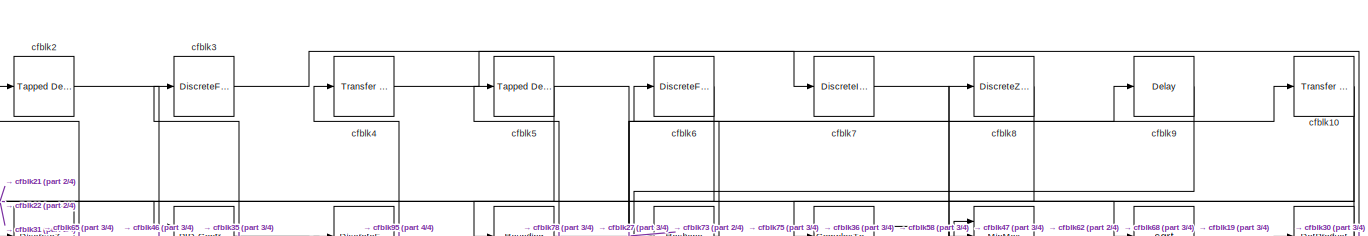
[diagram: root canvas - part 1/4, full width, top band]
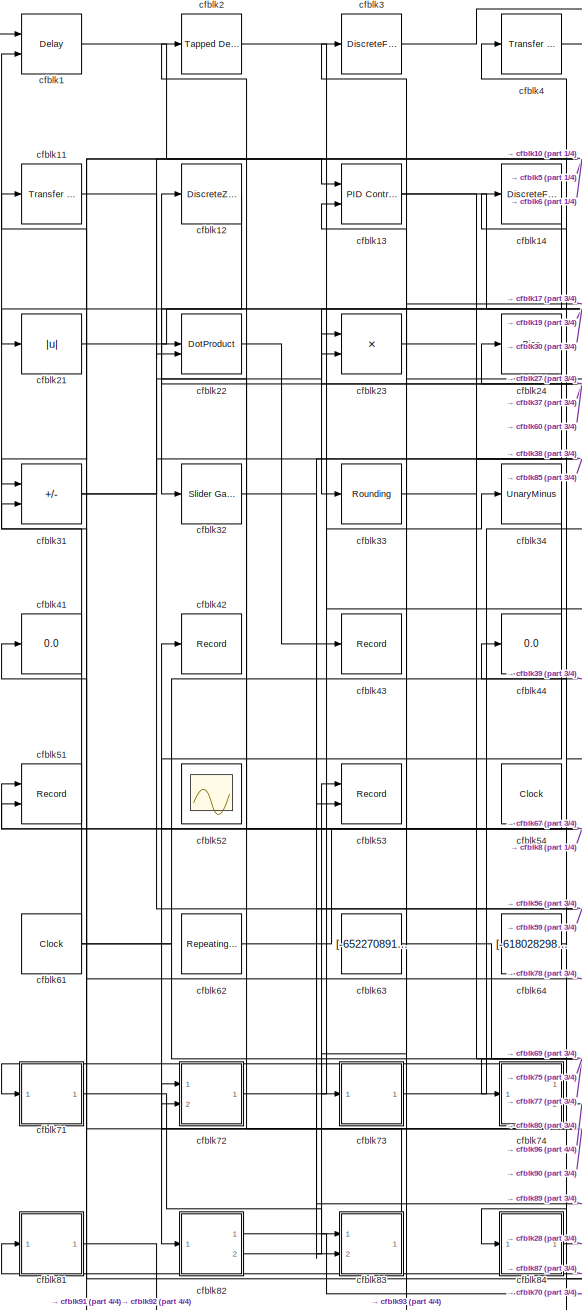
[diagram: root canvas - part 2/4, left side, full height]
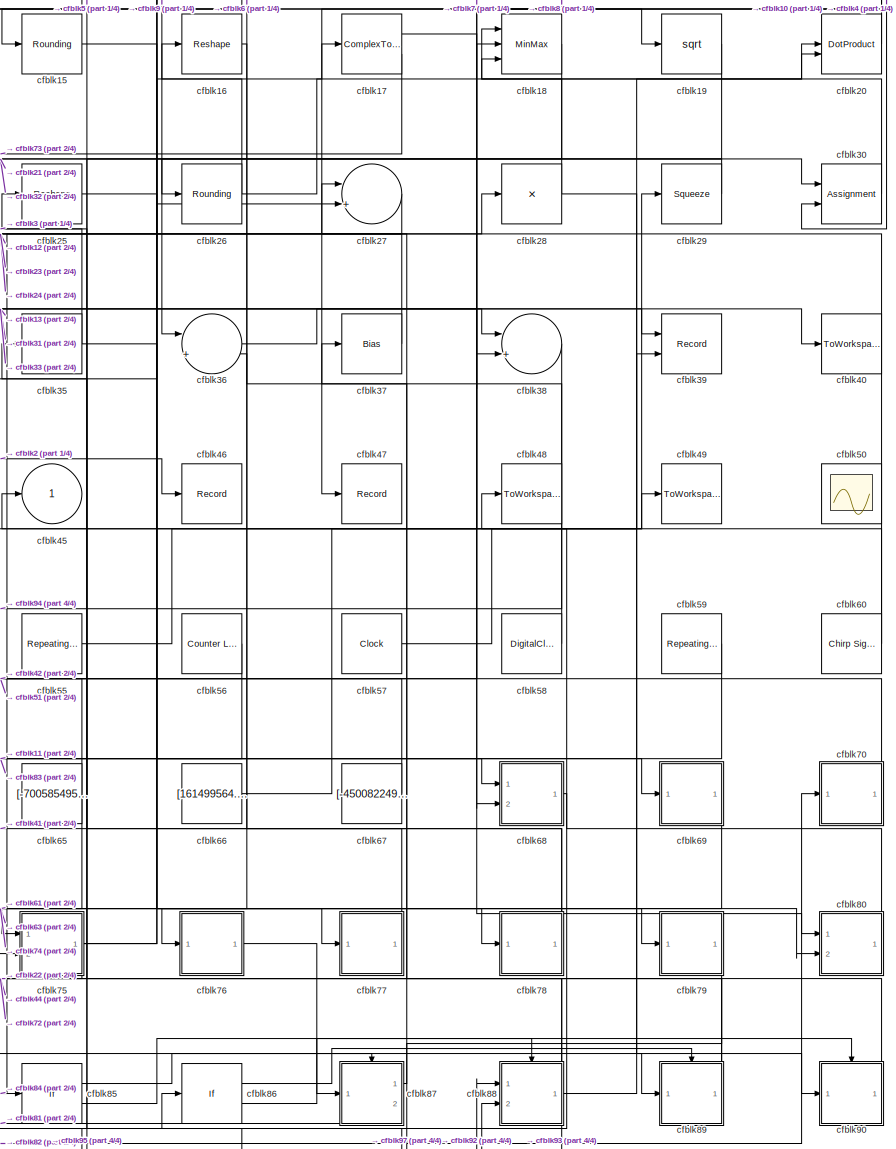
[diagram: root canvas - part 3/4, right side, full height]
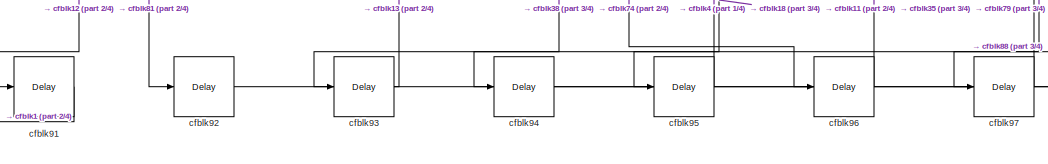
[diagram: root canvas - part 4/4, bottom center region]
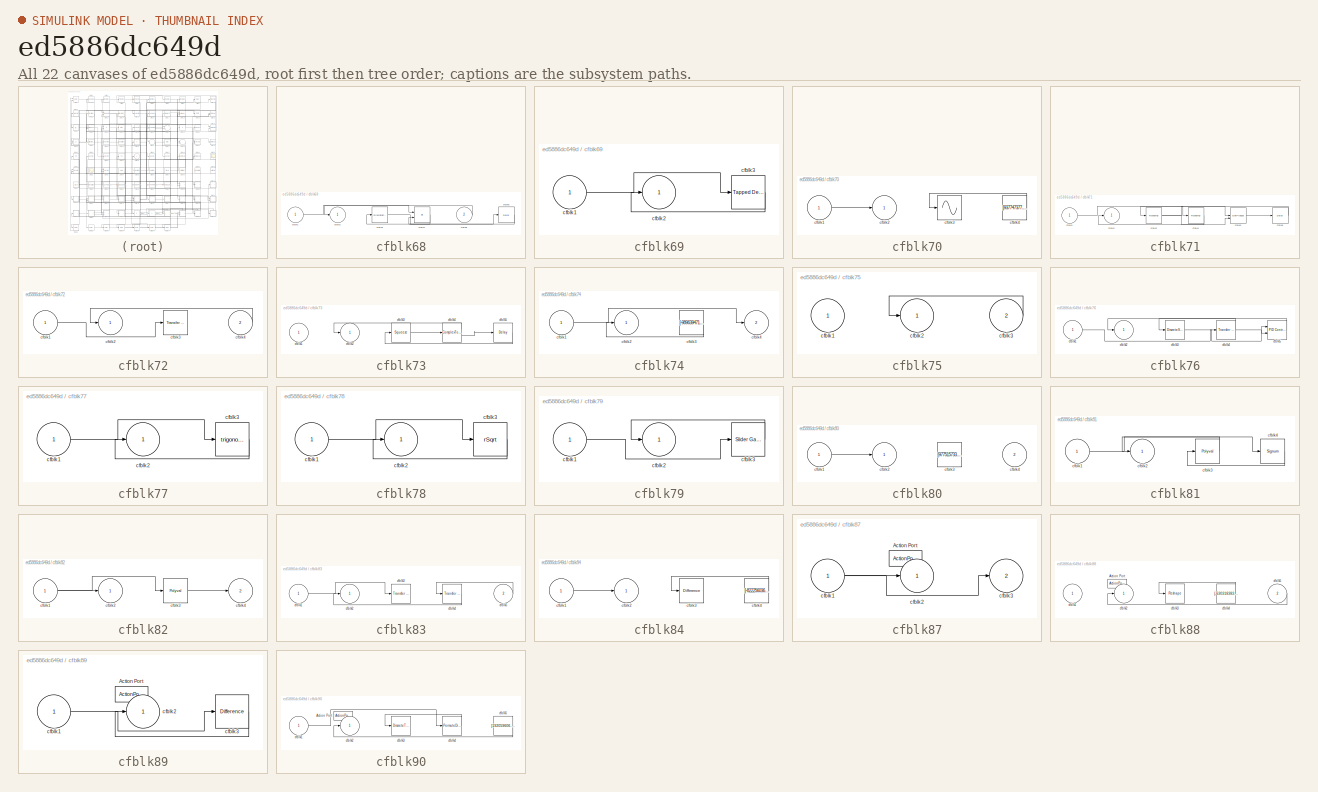
[diagram: thumbnail index - all 22 canvases of the model, root first then tree order]
MODEL slx_ed5886dc649d
KIND model
CONFIG AbsTol = auto
CONFIG EnableMultiTasking = off
CONFIG FixedStep = auto
CONFIG MaxStep = auto
CONFIG MinStep = auto
CONFIG RelTol = 1e-3
CONFIG SampleTimeConstraint = Unconstrained
CONFIG SolverName = VariableStepAuto
CONFIG StartTime = 0.0
CONFIG StopTime = 10.0
BLOCK [Delay] cfblk1
  InputPortMap = u0,e6
  Ports = [2, 1]
  SampleTime = 1
  ShowEnablePort = on
BLOCK [Reference] cfblk10  REF=simulink/Discrete/Transfer Fcn
Real Zero
  Ports = [1, 1]
  SourceBlock = simulink/Discrete/Transfer Fcn\nReal Zero
  SourceProductBaseCode = SL
  SourceType = Transfer Fcn Real Zero
BLOCK [Reference] cfblk11  REF=simulink/Discrete/Transfer Fcn
Real Zero
  Ports = [1, 1]
  SourceBlock = simulink/Discrete/Transfer Fcn\nReal Zero
  SourceProductBaseCode = SL
  SourceType = Transfer Fcn Real Zero
BLOCK [DiscreteZeroPole] cfblk12
  Gain = 1
  Poles = [0 0.5]
BLOCK [Reference] cfblk13  REF=slpidlib/PID Controller (2DOF)
  Ports = [2, 1]
  SourceBlock = slpidlib/PID Controller (2DOF)
  SourceProductBaseCode = SL
  SourceType = PID 2dof
BLOCK [DiscreteFir] cfblk14
  InputPortMap = u0
  OutputPortMap = o0
  Ports = [1, 1]
  SampleTime = 1
BLOCK [Rounding] cfblk15
BLOCK [Reshape] cfblk16
  Ports = [1, 1]
BLOCK [ComplexToMagnitudeAngle] cfblk17
  Ports = [1, 2]
BLOCK [MinMax] cfblk18
  Inputs = 3
  Ports = [3, 1]
BLOCK [Sqrt] cfblk19
BLOCK [Reference] cfblk2  REF=simulink/Discrete/Tapped Delay
  Ports = [1, 1]
  SourceBlock = simulink/Discrete/Tapped Delay
  SourceProductBaseCode = SL
  SourceType = Tapped Delay Line
BLOCK [DotProduct] cfblk20
  OutDataTypeStr = Inherit: Inherit via internal rule
BLOCK [Abs] cfblk21
  SaturateOnIntegerOverflow = off
BLOCK [DotProduct] cfblk22
  OutDataTypeStr = Inherit: Inherit via internal rule
BLOCK [Product] cfblk23
  Ports = [2, 1]
BLOCK [Bias] cfblk24
  Bias = [221233123.579420]
  SaturateOnIntegerOverflow = off
BLOCK [Reshape] cfblk25
  Ports = [1, 1]
BLOCK [Rounding] cfblk26
BLOCK [Sum] cfblk27
  Inputs = |++
  Ports = [2, 1]
BLOCK [Product] cfblk28
  Inputs = *
  Ports = [1, 1]
BLOCK [Squeeze] cfblk29
BLOCK [DiscreteFir] cfblk3
  InputPortMap = u0
  OutputPortMap = o0
  Ports = [1, 1]
  SampleTime = 1
BLOCK [Assignment] cfblk30
  DiagnosticForDimensions = Warning
  IndexOptions = Index vector (dialog)
  Indices = 1
  OutputSizes = 1
  Ports = [2, 1]
BLOCK [Sum] cfblk31
  IconShape = rectangular
  Inputs = +-
  Ports = [2, 1]
BLOCK [Reference] cfblk32  REF=simulink/Math
Operations/Slider
Gain
  Ports = [1, 1]
  SourceBlock = simulink/Math\nOperations/Slider\nGain
  SourceProductBaseCode = SL
  SourceType = Slider Gain
BLOCK [Rounding] cfblk33
BLOCK [UnaryMinus] cfblk34
BLOCK [Product] cfblk35
  Inputs = *
  Ports = [1, 1]
BLOCK [Sum] cfblk36
  Inputs = |++
  Ports = [2, 1]
BLOCK [Bias] cfblk37
  Bias = [-469509742.243286]
  SaturateOnIntegerOverflow = off
BLOCK [Sum] cfblk38
  Inputs = |++
  Ports = [2, 1]
BLOCK [Record] cfblk39
  CompatibilityTag = XY
  FileSettingsInternal = {"entries":[{"content":{"excelSettings":{"content":{},"type":"Streamout.ExcelSettings"}},"type":"Streamout.FileSettingStorage","uuid":"39295518-5782-4a04-9dda-65bbf2f7290d"}],"packageUris":["http://schema.mathworks.com/mf0/streamout_blocks/R2020a"],"version":"1.0"}
  Layout = [1 1]
  Ports = [2]
  SignalsInternal = {"entries":[{"content":{"signals":[{"content":{"blockPath":["sampleModel250/cfblk39"],"channel":[],"dimensions":[1],"domain":"sampleModel250/cfblk39","lineColor":"#a2142f","plots":[1],"port":1,"sid":[""],"signalID":10132,"signalName":"cfblk33"},"type":"RecordBlkView.Signal","uuid":"9efbc733-4780-4410-b863-ce1b8cd8a036"},{"content":{"blockPath":["sampleModel250/cfblk39"],"channel":[],"dimensions":[...<+385ch>
  VisualizationBindings = {"xyplotplugin":{"info":[{"series":[{"bindingParametersList":[{"parameter":"X-Axis","signalID":10132,"signalName":"cfblk33"},{"parameter":"Y-Axis","signalID":10136,"signalName":"cfblk61"}],"seriesID":11867}],"subplotID":1}]}}
BLOCK [Reference] cfblk4  REF=simulink/Discrete/Transfer Fcn
Lead or Lag
  Ports = [1, 1]
  SourceBlock = simulink/Discrete/Transfer Fcn\nLead or Lag
  SourceProductBaseCode = SL
  SourceType = Lead or Lag Compensator
BLOCK [ToWorkspace] cfblk40
  FixptAsFi = on
  MaxDataPoints = inf
  Ports = [1]
  SampleTime = -1
  SaveFormat = Timeseries
  VariableName = mmruxmq
BLOCK [Display] cfblk41
  Decimation = 1
  Ports = [1]
BLOCK [Record] cfblk42
  FileSettingsInternal = {"entries":[{"content":{"excelSettings":{"content":{},"type":"Streamout.ExcelSettings"}},"type":"Streamout.FileSettingStorage","uuid":"cb9cef44-850f-46f8-9e62-a5d9019da7f8"}],"packageUris":["http://schema.mathworks.com/mf0/streamout_blocks/R2020a"],"version":"1.0"}
  Ports = [1]
  SignalsInternal = {"entries":[{"content":{"signals":[{"content":{"blockPath":["sampleModel250/cfblk42"],"channel":[],"dimensions":[1],"domain":"sampleModel250/cfblk42","lineColor":"#0072bd","plots":[1],"port":1,"sid":[""],"signalID":10168,"signalName":"cfblk67"},"type":"RecordBlkView.Signal","uuid":"09506a4d-d469-40bf-9df4-0557f256c8fa"}]},"type":"RecordBlkView.InputSignals","uuid":"d07d11bf-0a13-4a29-ba0c-274f99fc...<+98ch>
  VisualizationBindings = {"sparklinesplugin":{"info":[{"bindingParametersList":[],"subplotID":1}]}}
BLOCK [Record] cfblk43
  FileSettingsInternal = {"entries":[{"content":{"excelSettings":{"content":{},"type":"Streamout.ExcelSettings"}},"type":"Streamout.FileSettingStorage","uuid":"24f78354-d28b-420c-ba3f-fe416d6032e0"}],"packageUris":["http://schema.mathworks.com/mf0/streamout_blocks/R2020a"],"version":"1.0"}
  Ports = [1]
  SignalsInternal = {"entries":[{"content":{"signals":[{"content":{"blockPath":["sampleModel250/cfblk43"],"channel":[],"dimensions":[1],"domain":"sampleModel250/cfblk43","lineColor":"#139fff","plots":[1],"port":1,"sid":[""],"signalID":10140,"signalName":"cfblk22"},"type":"RecordBlkView.Signal","uuid":"c1a6c549-0a82-4f1d-8783-18ee6ca6e206"}]},"type":"RecordBlkView.InputSignals","uuid":"009778dc-f500-4119-a494-20fbbf5a...<+98ch>
  VisualizationBindings = {"sparklinesplugin":{"info":[{"bindingParametersList":[],"subplotID":1}]}}
BLOCK [Display] cfblk44
  Decimation = 1
  Ports = [1]
BLOCK [Outport] cfblk45
BLOCK [Record] cfblk46
  FileSettingsInternal = {"entries":[{"content":{"excelSettings":{"content":{},"type":"Streamout.ExcelSettings"}},"type":"Streamout.FileSettingStorage","uuid":"d34b3b38-d37b-44bf-a1ca-0d6c239076fa"}],"packageUris":["http://schema.mathworks.com/mf0/streamout_blocks/R2020a"],"version":"1.0"}
  Ports = [1]
  SignalsInternal = {"entries":[{"content":{"signals":[{"content":{"blockPath":["sampleModel250/cfblk46"],"channel":[],"dimensions":[1],"domain":"sampleModel250/cfblk46","lineColor":"#ff6929","plots":[1],"port":1,"sid":[""],"signalID":10144,"signalName":"cfblk2"},"type":"RecordBlkView.Signal","uuid":"5d42b0a2-1079-46c0-88f1-f1e7f1e913a3"}]},"type":"RecordBlkView.InputSignals","uuid":"de118d10-f6e7-4dc8-9a86-7f08f8c21...<+97ch>
  VisualizationBindings = {"sparklinesplugin":{"info":[{"bindingParametersList":[],"subplotID":1}]}}
BLOCK [Record] cfblk47
  FileSettingsInternal = {"entries":[{"content":{"excelSettings":{"content":{},"type":"Streamout.ExcelSettings"}},"type":"Streamout.FileSettingStorage","uuid":"d3a56f26-8ac3-44b7-90be-3d39ad570db3"}],"packageUris":["http://schema.mathworks.com/mf0/streamout_blocks/R2020a"],"version":"1.0"}
  Ports = [1]
  SignalsInternal = {"entries":[{"content":{"signals":[{"content":{"blockPath":["sampleModel250/cfblk47"],"channel":[],"dimensions":[1],"domain":"sampleModel250/cfblk47","lineColor":"#b746ff","plots":[1],"port":1,"sid":[""],"signalID":10148,"signalName":"cfblk10"},"type":"RecordBlkView.Signal","uuid":"91dbde0a-49a0-40fd-acb2-10672f723bb8"}]},"type":"RecordBlkView.InputSignals","uuid":"eb8da581-21b2-4b6f-8b31-33cd9e31...<+98ch>
  VisualizationBindings = {"sparklinesplugin":{"info":[{"bindingParametersList":[],"subplotID":1}]}}
BLOCK [ToWorkspace] cfblk48
  FixptAsFi = on
  MaxDataPoints = inf
  Ports = [1]
  SampleTime = -1
  SaveFormat = Timeseries
  VariableName = fczpstf
BLOCK [ToWorkspace] cfblk49
  FixptAsFi = on
  MaxDataPoints = inf
  Ports = [1]
  SampleTime = -1
  SaveFormat = Timeseries
  VariableName = zfhgqgn
BLOCK [Reference] cfblk5  REF=simulink/Discrete/Tapped Delay
  Ports = [1, 1]
  SourceBlock = simulink/Discrete/Tapped Delay
  SourceProductBaseCode = SL
  SourceType = Tapped Delay Line
BLOCK [Scope] cfblk50
  Floating = on
  NumInputPorts = 1
  Ports = []
BLOCK [Record] cfblk51
  CompatibilityTag = XY
  FileSettingsInternal = {"entries":[{"content":{"excelSettings":{"content":{},"type":"Streamout.ExcelSettings"}},"type":"Streamout.FileSettingStorage","uuid":"966ac46e-7d6c-426f-9254-bf47747501fd"}],"packageUris":["http://schema.mathworks.com/mf0/streamout_blocks/R2020a"],"version":"1.0"}
  Layout = [1 1]
  Ports = [2]
  SignalsInternal = {"entries":[{"content":{"signals":[{"content":{"blockPath":["sampleModel250/cfblk51"],"channel":[],"dimensions":[1],"domain":"sampleModel250/cfblk51","lineColor":"#a2142f","plots":[1],"port":1,"sid":[""],"signalID":10152,"signalName":"cfblk70"},"type":"RecordBlkView.Signal","uuid":"bcb4d5db-4b3e-4679-994d-15607dbef0df"},{"content":{"blockPath":["sampleModel250/cfblk51"],"channel":[],"dimensions":[...<+385ch>
  VisualizationBindings = {"xyplotplugin":{"info":[{"series":[{"bindingParametersList":[{"parameter":"X-Axis","signalID":10152,"signalName":"cfblk70"},{"parameter":"Y-Axis","signalID":10156,"signalName":"cfblk54"}],"seriesID":32821}],"subplotID":1}]}}
BLOCK [Scope] cfblk52
  Floating = on
  NumInputPorts = 1
  Ports = []
BLOCK [Record] cfblk53
  CompatibilityTag = XY
  FileSettingsInternal = {"entries":[{"content":{"excelSettings":{"content":{},"type":"Streamout.ExcelSettings"}},"type":"Streamout.FileSettingStorage","uuid":"99a0b977-80ef-4c26-b42d-8fc2480f20f4"}],"packageUris":["http://schema.mathworks.com/mf0/streamout_blocks/R2020a"],"version":"1.0"}
  Layout = [1 1]
  Ports = [2]
  SignalsInternal = {"entries":[{"content":{"signals":[{"content":{"blockPath":["sampleModel250/cfblk53"],"channel":[],"dimensions":[1],"domain":"sampleModel250/cfblk53","lineColor":"#a2142f","plots":[1],"port":1,"sid":[""],"signalID":10160,"signalName":"cfblk82:2"},"type":"RecordBlkView.Signal","uuid":"1e65bc9d-8603-4a2e-9d1d-7b919e3292a0"},{"content":{"blockPath":["sampleModel250/cfblk53"],"channel":[],"dimensions"...<+387ch>
  VisualizationBindings = {"xyplotplugin":{"info":[{"series":[{"bindingParametersList":[{"parameter":"X-Axis","signalID":10160,"signalName":"cfblk82:2"},{"parameter":"Y-Axis","signalID":10164,"signalName":"cfblk24"}],"seriesID":43266}],"subplotID":1}]}}
BLOCK [Clock] cfblk54
BLOCK [Reference] cfblk55  REF=simulink/Sources/Repeating
Sequence
Stair
  Ports = [0, 1]
  SourceBlock = simulink/Sources/Repeating\nSequence\nStair
  SourceProductBaseCode = SL
  SourceType = Repeating Sequence Stair
BLOCK [Reference] cfblk56  REF=simulink/Sources/Counter
Limited
  Ports = [0, 1]
  SourceBlock = simulink/Sources/Counter\nLimited
  SourceProductBaseCode = SL
  SourceType = Counter Limited
BLOCK [Clock] cfblk57
BLOCK [DigitalClock] cfblk58
BLOCK [Reference] cfblk59  REF=simulink/Sources/Repeating
Sequence
  Ports = [0, 1]
  SourceBlock = simulink/Sources/Repeating\nSequence
  SourceProductBaseCode = SL
  SourceType = Repeating table
BLOCK [DiscreteFir] cfblk6
  InputPortMap = u0
  OutputPortMap = o0
  Ports = [1, 1]
  SampleTime = 1
BLOCK [Reference] cfblk60  REF=simulink/Sources/Chirp Signal
  Ports = [0, 1]
  SourceBlock = simulink/Sources/Chirp Signal
  SourceProductBaseCode = SL
  SourceType = chirp
BLOCK [Clock] cfblk61
BLOCK [Reference] cfblk62  REF=simulink/Sources/Repeating
Sequence
Interpolated
  Ports = [0, 1]
  SourceBlock = simulink/Sources/Repeating\nSequence\nInterpolated
  SourceProductBaseCode = SL
  SourceType = Repeating Sequence Interpolated
BLOCK [Constant] cfblk63
  SampleTime = 1
  Value = [-652270891.321598]
BLOCK [Constant] cfblk64
  SampleTime = 1
  Value = [-618028298.937275]
BLOCK [Constant] cfblk65
  SampleTime = 1
  Value = [-700585495.887032]
BLOCK [Constant] cfblk66
  SampleTime = 1
  Value = [161499564.067935]
BLOCK [Constant] cfblk67
  SampleTime = 1
  Value = [-450082249.795794]
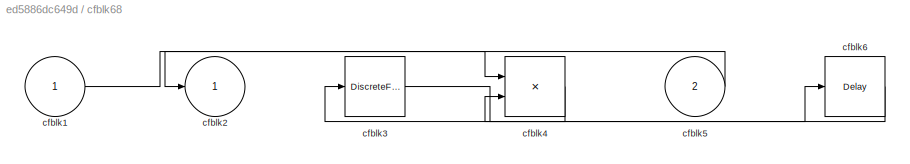
BLOCK [SubSystem] cfblk68
  Ports = [2, 1]
  RequestExecContextInheritance = off
BLOCK [Inport] cfblk68/cfblk1
BLOCK [Outport] cfblk68/cfblk2
BLOCK [DiscreteFir] cfblk68/cfblk3
  InputPortMap = u0
  OutputPortMap = o0
  Ports = [1, 1]
  SampleTime = 1
BLOCK [Product] cfblk68/cfblk4
  Inputs = **
  Ports = [2, 1]
BLOCK [Inport] cfblk68/cfblk5
  Port = 2
BLOCK [Delay] cfblk68/cfblk6
  InputPortMap = u0
  Ports = [1, 1]
  SampleTime = 1
BLOCK [SubSystem] cfblk69
  Ports = [1, 1]
  RequestExecContextInheritance = off
BLOCK [Inport] cfblk69/cfblk1
BLOCK [Outport] cfblk69/cfblk2
BLOCK [Reference] cfblk69/cfblk3  REF=simulink/Discrete/Tapped Delay
  Ports = [1, 1]
  SourceBlock = simulink/Discrete/Tapped Delay
  SourceProductBaseCode = SL
  SourceType = Tapped Delay Line
BLOCK [DiscreteIntegrator] cfblk7
  ICPrevOutput = DiscIntNeverNeededParam
  ICPrevScaledInput = DiscIntNeverNeededParam
  InitialConditionSetting = Auto
  Ports = [1, 1]
BLOCK [SubSystem] cfblk70
  Ports = [1, 1]
  RequestExecContextInheritance = off
BLOCK [Inport] cfblk70/cfblk1
BLOCK [Outport] cfblk70/cfblk2
BLOCK [Sin] cfblk70/cfblk3
  Ports = [1, 1]
  SampleTime = 0
  TimeSource = Use external signal
BLOCK [Constant] cfblk70/cfblk4
  SampleTime = 1
  Value = [937747377.482139]
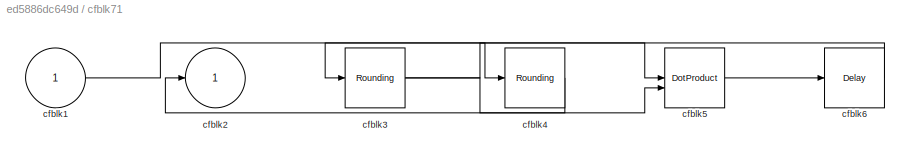
BLOCK [SubSystem] cfblk71
  Ports = [1, 1]
  RequestExecContextInheritance = off
BLOCK [Inport] cfblk71/cfblk1
BLOCK [Outport] cfblk71/cfblk2
BLOCK [Rounding] cfblk71/cfblk3
BLOCK [Rounding] cfblk71/cfblk4
BLOCK [DotProduct] cfblk71/cfblk5
  OutDataTypeStr = Inherit: Inherit via internal rule
BLOCK [Delay] cfblk71/cfblk6
  InputPortMap = u0
  Ports = [1, 1]
  SampleTime = 1
BLOCK [SubSystem] cfblk72
  Ports = [2, 1]
  RequestExecContextInheritance = off
BLOCK [Inport] cfblk72/cfblk1
BLOCK [Outport] cfblk72/cfblk2
BLOCK [Reference] cfblk72/cfblk3  REF=simulink/Discrete/Transfer Fcn
First Order
  Ports = [1, 1]
  SourceBlock = simulink/Discrete/Transfer Fcn\nFirst Order
  SourceProductBaseCode = SL
  SourceType = First Order Transfer Fcn
BLOCK [Inport] cfblk72/cfblk4
  Port = 2
BLOCK [SubSystem] cfblk73
  Ports = [1, 1]
  RequestExecContextInheritance = off
BLOCK [Inport] cfblk73/cfblk1
BLOCK [Outport] cfblk73/cfblk2
BLOCK [Squeeze] cfblk73/cfblk3
BLOCK [ComplexToRealImag] cfblk73/cfblk4
  Ports = [1, 2]
BLOCK [Delay] cfblk73/cfblk5
  InputPortMap = u0
  Ports = [1, 1]
  SampleTime = 1
BLOCK [SubSystem] cfblk74
  Ports = [1, 2]
  RequestExecContextInheritance = off
BLOCK [Inport] cfblk74/cfblk1
BLOCK [Outport] cfblk74/cfblk2
BLOCK [Constant] cfblk74/cfblk3
  SampleTime = 1
  Value = [-989639471.123459]
BLOCK [Outport] cfblk74/cfblk4
  Port = 2
BLOCK [SubSystem] cfblk75
  Ports = [2, 1]
  RequestExecContextInheritance = off
BLOCK [Inport] cfblk75/cfblk1
BLOCK [Outport] cfblk75/cfblk2
BLOCK [Inport] cfblk75/cfblk3
  Port = 2
BLOCK [SubSystem] cfblk76
  Ports = [1, 1]
  RequestExecContextInheritance = off
BLOCK [Inport] cfblk76/cfblk1
BLOCK [Outport] cfblk76/cfblk2
BLOCK [DiscreteStateSpace] cfblk76/cfblk3
BLOCK [Reference] cfblk76/cfblk4  REF=simulink/Discrete/Transfer Fcn
First Order
  Ports = [1, 1]
  SourceBlock = simulink/Discrete/Transfer Fcn\nFirst Order
  SourceProductBaseCode = SL
  SourceType = First Order Transfer Fcn
BLOCK [Reference] cfblk76/cfblk5  REF=slpidlib/PID Controller (2DOF)
  Ports = [2, 1]
  SourceBlock = slpidlib/PID Controller (2DOF)
  SourceProductBaseCode = SL
  SourceType = PID 2dof
BLOCK [SubSystem] cfblk77
  Ports = [1, 1]
  RequestExecContextInheritance = off
BLOCK [Inport] cfblk77/cfblk1
BLOCK [Outport] cfblk77/cfblk2
BLOCK [Trigonometry] cfblk77/cfblk3
  Ports = [1, 1]
BLOCK [SubSystem] cfblk78
  Ports = [1, 1]
  RequestExecContextInheritance = off
BLOCK [Inport] cfblk78/cfblk1
BLOCK [Outport] cfblk78/cfblk2
BLOCK [Sqrt] cfblk78/cfblk3
  AlgorithmType = Newton-Raphson
  Operator = rSqrt
BLOCK [SubSystem] cfblk79
  Ports = [1, 1]
  RequestExecContextInheritance = off
BLOCK [Inport] cfblk79/cfblk1
BLOCK [Outport] cfblk79/cfblk2
BLOCK [Reference] cfblk79/cfblk3  REF=simulink/Math
Operations/Slider
Gain
  Ports = [1, 1]
  SourceBlock = simulink/Math\nOperations/Slider\nGain
  SourceProductBaseCode = SL
  SourceType = Slider Gain
BLOCK [DiscreteZeroPole] cfblk8
  Gain = 1
  Poles = [0 0.5]
BLOCK [SubSystem] cfblk80
  Ports = [2, 1]
  RequestExecContextInheritance = off
BLOCK [Inport] cfblk80/cfblk1
BLOCK [Outport] cfblk80/cfblk2
BLOCK [Constant] cfblk80/cfblk3
  SampleTime = 1
  Value = [977515733.967812]
BLOCK [Inport] cfblk80/cfblk4
  Port = 2
BLOCK [SubSystem] cfblk81
  Ports = [1, 1]
  RequestExecContextInheritance = off
BLOCK [Inport] cfblk81/cfblk1
BLOCK [Outport] cfblk81/cfblk2
BLOCK [Polyval] cfblk81/cfblk3
  Coefs = [ +2.081618890e-019, -1.441693666e-014, +4.719686976e-010, -8.536869453e-006, +1.621573104e-001, -8.087801117e+001 ]
BLOCK [Signum] cfblk81/cfblk4
BLOCK [SubSystem] cfblk82
  Ports = [1, 2]
  RequestExecContextInheritance = off
BLOCK [Inport] cfblk82/cfblk1
BLOCK [Outport] cfblk82/cfblk2
BLOCK [Polyval] cfblk82/cfblk3
  Coefs = [ +2.081618890e-019, -1.441693666e-014, +4.719686976e-010, -8.536869453e-006, +1.621573104e-001, -8.087801117e+001 ]
BLOCK [Outport] cfblk82/cfblk4
  Port = 2
BLOCK [SubSystem] cfblk83
  Ports = [2, 1]
  RequestExecContextInheritance = off
BLOCK [Inport] cfblk83/cfblk1
BLOCK [Outport] cfblk83/cfblk2
BLOCK [Reference] cfblk83/cfblk3  REF=simulink/Discrete/Transfer Fcn
Lead or Lag
  Ports = [1, 1]
  SourceBlock = simulink/Discrete/Transfer Fcn\nLead or Lag
  SourceProductBaseCode = SL
  SourceType = Lead or Lag Compensator
BLOCK [Reference] cfblk83/cfblk4  REF=simulink/Discrete/Transfer Fcn
Lead or Lag
  Ports = [1, 1]
  SourceBlock = simulink/Discrete/Transfer Fcn\nLead or Lag
  SourceProductBaseCode = SL
  SourceType = Lead or Lag Compensator
BLOCK [Inport] cfblk83/cfblk5
  Port = 2
BLOCK [SubSystem] cfblk84
  Ports = [1, 1]
  RequestExecContextInheritance = off
BLOCK [Inport] cfblk84/cfblk1
BLOCK [Outport] cfblk84/cfblk2
BLOCK [Reference] cfblk84/cfblk3  REF=simulink/Discrete/Difference
  Ports = [1, 1]
  SourceBlock = simulink/Discrete/Difference
  SourceProductBaseCode = SL
  SourceType = Difference
BLOCK [Constant] cfblk84/cfblk4
  SampleTime = 1
  Value = [-822256036.617830]
BLOCK [If] cfblk85
  IfExpression = u1 >= 0
  Ports = [1, 2]
  SampleTime = 1
BLOCK [If] cfblk86
  IfExpression = u1 >= 0
  Ports = [1, 2]
  SampleTime = 1
BLOCK [SubSystem] cfblk87
  Ports = [1, 2, 0, 0, 0, 0, 0, 1]
  RequestExecContextInheritance = off
  TreatAsAtomicUnit = on
BLOCK [ActionPort] cfblk87/Action Port
  ActionPortLabel = if(u1 >= 0)
BLOCK [Inport] cfblk87/cfblk1
BLOCK [Outport] cfblk87/cfblk2
BLOCK [Outport] cfblk87/cfblk3
  Port = 2
BLOCK [SubSystem] cfblk88
  Ports = [2, 1, 0, 0, 0, 0, 0, 1]
  RequestExecContextInheritance = off
  TreatAsAtomicUnit = on
BLOCK [ActionPort] cfblk88/Action Port
  ActionPortLabel = else
BLOCK [Inport] cfblk88/cfblk1
BLOCK [Outport] cfblk88/cfblk2
BLOCK [Reshape] cfblk88/cfblk3
  Ports = [1, 1]
BLOCK [Constant] cfblk88/cfblk4
  SampleTime = 1
  Value = [-630318383.695768]
BLOCK [Inport] cfblk88/cfblk5
  Port = 2
BLOCK [SubSystem] cfblk89
  Ports = [1, 1, 0, 0, 0, 0, 0, 1]
  RequestExecContextInheritance = off
  TreatAsAtomicUnit = on
BLOCK [ActionPort] cfblk89/Action Port
  ActionPortLabel = if(u1 >= 0)
BLOCK [Inport] cfblk89/cfblk1
BLOCK [Outport] cfblk89/cfblk2
BLOCK [Reference] cfblk89/cfblk3  REF=simulink/Discrete/Difference
  Ports = [1, 1]
  SourceBlock = simulink/Discrete/Difference
  SourceProductBaseCode = SL
  SourceType = Difference
BLOCK [Delay] cfblk9
  InputPortMap = u0
  Ports = [1, 1]
  SampleTime = 1
BLOCK [SubSystem] cfblk90
  Ports = [1, 1, 0, 0, 0, 0, 0, 1]
  RequestExecContextInheritance = off
  TreatAsAtomicUnit = on
BLOCK [ActionPort] cfblk90/Action Port
  ActionPortLabel = else
BLOCK [Inport] cfblk90/cfblk1
BLOCK [Outport] cfblk90/cfblk2
BLOCK [DiscreteTransferFcn] cfblk90/cfblk3
  InputPortMap = u0
  Ports = [1, 1]
BLOCK [PermuteDimensions] cfblk90/cfblk4
BLOCK [Constant] cfblk90/cfblk5
  SampleTime = 1
  Value = [192059606.084063]
BLOCK [Delay] cfblk91
  InputPortMap = u0
  Ports = [1, 1]
  SampleTime = 1
BLOCK [Delay] cfblk92
  InputPortMap = u0
  Ports = [1, 1]
  SampleTime = 1
BLOCK [Delay] cfblk93
  InputPortMap = u0
  Ports = [1, 1]
  SampleTime = 1
BLOCK [Delay] cfblk94
  InputPortMap = u0
  Ports = [1, 1]
  SampleTime = 1
BLOCK [Delay] cfblk95
  InputPortMap = u0
  Ports = [1, 1]
  SampleTime = 1
BLOCK [Delay] cfblk96
  InputPortMap = u0
  Ports = [1, 1]
  SampleTime = 1
BLOCK [Delay] cfblk97
  InputPortMap = u0
  Ports = [1, 1]
  SampleTime = 1
NET cfblk10:1 -> cfblk22:2, cfblk47:1
LINE cfblk11:1 -> cfblk69:1
LINE cfblk12:1 -> cfblk91:1
NET cfblk13:1 -> cfblk38:2, cfblk85:1
LINE cfblk14:1 -> cfblk33:1
LINE cfblk15:1 -> cfblk68:1
LINE cfblk16:1 -> cfblk76:1
LINE cfblk17:1 -> cfblk80:1
LINE cfblk17:2 -> cfblk73:1
LINE cfblk18:1 -> cfblk95:1
LINE cfblk19:1 -> cfblk32:1
LINE cfblk1:1 -> cfblk13:1
LINE cfblk20:1 -> cfblk15:1
LINE cfblk21:1 -> cfblk30:1
LINE cfblk22:1 -> cfblk43:1
LINE cfblk23:1 -> cfblk75:1
LINE cfblk24:1 -> cfblk53:2
LINE cfblk25:1 -> cfblk78:1
NET cfblk26:1 -> cfblk16:1, cfblk20:1
LINE cfblk27:1 -> cfblk23:2
NET cfblk28:1 -> cfblk18:3, cfblk90:1
LINE cfblk29:1 -> cfblk26:1
LINE cfblk2:1 -> cfblk46:1
LINE cfblk30:1 -> cfblk18:1
NET cfblk31:1 -> cfblk23:1, cfblk38:1
LINE cfblk32:1 -> cfblk89:1
LINE cfblk33:1 -> cfblk39:1
LINE cfblk34:1 -> cfblk82:1
NET cfblk35:1 -> cfblk3:1, cfblk79:1
LINE cfblk36:1 -> cfblk40:1
LINE cfblk37:1 -> cfblk12:1
LINE cfblk38:1 -> cfblk94:1
LINE cfblk3:1 -> cfblk7:1
LINE cfblk4:1 -> cfblk30:2
LINE cfblk54:1 -> cfblk51:2
LINE cfblk55:1 -> cfblk18:2
LINE cfblk56:1 -> cfblk83:2
LINE cfblk57:1 -> cfblk29:1
LINE cfblk58:1 -> cfblk6:1
LINE cfblk59:1 -> cfblk84:1
NET cfblk5:1 -> cfblk27:2, cfblk31:1
NET cfblk60:1 -> cfblk24:1, cfblk45:1
NET cfblk61:1 -> cfblk1:2, cfblk39:2, cfblk80:2
LINE cfblk62:1 -> cfblk8:1
LINE cfblk63:1 -> cfblk77:1
LINE cfblk64:1 -> cfblk14:1
NET cfblk65:1 -> cfblk2:1, cfblk75:2
LINE cfblk66:1 -> cfblk49:1
LINE cfblk67:1 -> cfblk42:1
LINE cfblk68/cfblk1:1 -> cfblk68/cfblk4:1
LINE cfblk68/cfblk3:1 -> cfblk68/cfblk6:1
LINE cfblk68/cfblk4:1 -> cfblk68/cfblk3:1
LINE cfblk68/cfblk5:1 -> cfblk68/cfblk2:1
LINE cfblk68/cfblk6:1 -> cfblk68/cfblk4:2
LINE cfblk68:1 -> cfblk86:1
LINE cfblk69/cfblk1:1 -> cfblk69/cfblk3:1
LINE cfblk69/cfblk3:1 -> cfblk69/cfblk2:1
LINE cfblk69:1 -> cfblk74:1
LINE cfblk6:1 -> cfblk21:1
LINE cfblk70/cfblk1:1 -> cfblk70/cfblk2:1
LINE cfblk70/cfblk4:1 -> cfblk70/cfblk3:1
LINE cfblk70:1 -> cfblk51:1
LINE cfblk71/cfblk1:1 -> cfblk71/cfblk4:1
NET cfblk71/cfblk3:1 -> cfblk71/cfblk5:1, cfblk71/cfblk5:2
LINE cfblk71/cfblk4:1 -> cfblk71/cfblk2:1
LINE cfblk71/cfblk5:1 -> cfblk71/cfblk6:1
LINE cfblk71/cfblk6:1 -> cfblk71/cfblk3:1
LINE cfblk71:1 -> cfblk83:1
LINE cfblk72/cfblk1:1 -> cfblk72/cfblk3:1
LINE cfblk72/cfblk4:1 -> cfblk72/cfblk2:1
LINE cfblk72:1 -> cfblk34:1
LINE cfblk73/cfblk3:1 -> cfblk73/cfblk4:1
LINE cfblk73/cfblk4:1 -> cfblk73/cfblk2:1
LINE cfblk73/cfblk4:2 -> cfblk73/cfblk5:1
LINE cfblk73/cfblk5:1 -> cfblk73/cfblk3:1
LINE cfblk73:1 -> cfblk10:1
LINE cfblk74/cfblk1:1 -> cfblk74/cfblk4:1
LINE cfblk74/cfblk3:1 -> cfblk74/cfblk2:1
LINE cfblk74:1 -> cfblk71:1
LINE cfblk74:2 -> cfblk96:1
LINE cfblk75/cfblk3:1 -> cfblk75/cfblk2:1
NET cfblk75:1 -> cfblk17:1, cfblk72:2, cfblk9:1
LINE cfblk76/cfblk1:1 -> cfblk76/cfblk4:1
LINE cfblk76/cfblk3:1 -> cfblk76/cfblk5:1
NET cfblk76/cfblk4:1 -> cfblk76/cfblk3:1, cfblk76/cfblk5:2
LINE cfblk76/cfblk5:1 -> cfblk76/cfblk2:1
LINE cfblk76:1 -> cfblk87:1
LINE cfblk77/cfblk1:1 -> cfblk77/cfblk3:1
LINE cfblk77/cfblk3:1 -> cfblk77/cfblk2:1
LINE cfblk77:1 -> cfblk36:2
LINE cfblk78/cfblk1:1 -> cfblk78/cfblk3:1
LINE cfblk78/cfblk3:1 -> cfblk78/cfblk2:1
NET cfblk78:1 -> cfblk41:1, cfblk5:1
LINE cfblk79/cfblk1:1 -> cfblk79/cfblk3:1
LINE cfblk79/cfblk3:1 -> cfblk79/cfblk2:1
LINE cfblk79:1 -> cfblk97:1
LINE cfblk7:1 -> cfblk19:1
LINE cfblk80/cfblk1:1 -> cfblk80/cfblk2:1
LINE cfblk80:1 -> cfblk48:1
LINE cfblk81/cfblk1:1 -> cfblk81/cfblk4:1
LINE cfblk81/cfblk3:1 -> cfblk81/cfblk2:1
LINE cfblk81/cfblk4:1 -> cfblk81/cfblk3:1
LINE cfblk81:1 -> cfblk92:1
NET cfblk82/cfblk1:1 -> cfblk82/cfblk2:1, cfblk82/cfblk3:1
LINE cfblk82/cfblk3:1 -> cfblk82/cfblk4:1
LINE cfblk82:1 -> cfblk70:1
LINE cfblk82:2 -> cfblk53:1
LINE cfblk83/cfblk1:1 -> cfblk83/cfblk3:1
LINE cfblk83/cfblk4:1 -> cfblk83/cfblk2:1
LINE cfblk83/cfblk5:1 -> cfblk83/cfblk4:1
LINE cfblk83:1 -> cfblk31:2
LINE cfblk84/cfblk1:1 -> cfblk84/cfblk2:1
LINE cfblk84/cfblk4:1 -> cfblk84/cfblk3:1
LINE cfblk84:1 -> cfblk28:1
LINE cfblk85:1 -> cfblk87:ifaction
LINE cfblk85:2 -> cfblk88:ifaction
LINE cfblk86:1 -> cfblk89:ifaction
LINE cfblk86:2 -> cfblk90:ifaction
NET cfblk87/cfblk1:1 -> cfblk87/cfblk2:1, cfblk87/cfblk3:1
LINE cfblk87:1 -> cfblk37:1
LINE cfblk87:2 -> cfblk81:1
LINE cfblk88/cfblk4:1 -> cfblk88/cfblk3:1
LINE cfblk88/cfblk5:1 -> cfblk88/cfblk2:1
NET cfblk88:1 -> cfblk20:2, cfblk25:1, cfblk27:1, cfblk93:1
LINE cfblk89/cfblk1:1 -> cfblk89/cfblk3:1
LINE cfblk89/cfblk3:1 -> cfblk89/cfblk2:1
NET cfblk89:1 -> cfblk22:1, cfblk44:1
LINE cfblk8:1 -> cfblk68:2
LINE cfblk90/cfblk1:1 -> cfblk90/cfblk4:1
LINE cfblk90/cfblk4:1 -> cfblk90/cfblk3:1
LINE cfblk90/cfblk5:1 -> cfblk90/cfblk2:1
LINE cfblk90:1 -> cfblk72:1
LINE cfblk91:1 -> cfblk1:1
LINE cfblk92:1 -> cfblk88:1
LINE cfblk93:1 -> cfblk13:2
LINE cfblk94:1 -> cfblk88:2
LINE cfblk95:1 -> cfblk4:1
LINE cfblk96:1 -> cfblk11:1
LINE cfblk97:1 -> cfblk35:1
LINE cfblk9:1 -> cfblk36:1
note: NET lines group one-source signal fan-out (src -> all destinations, sorted); 1:1 wires keep LINE
